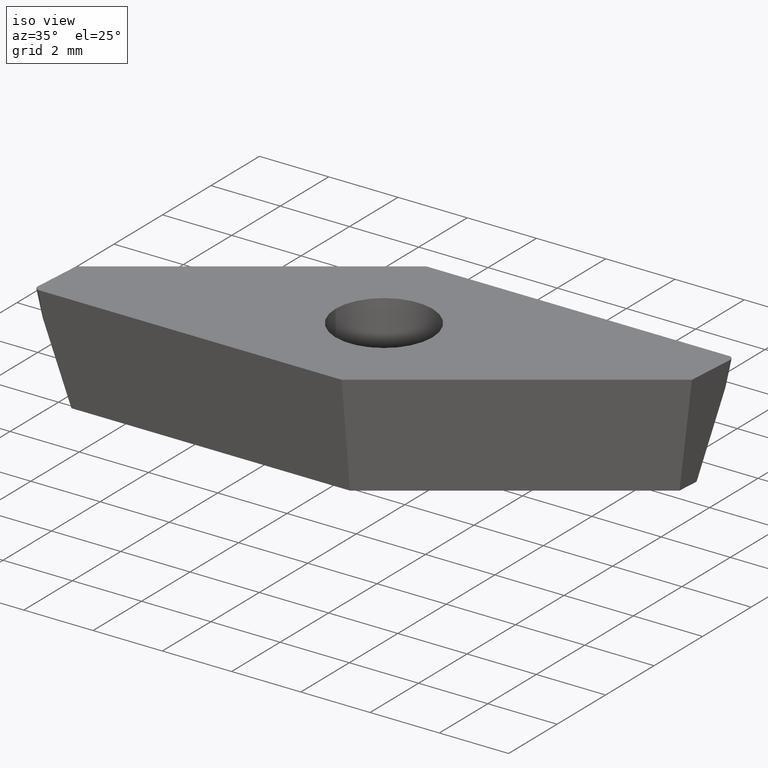
[diagram: clean part render]
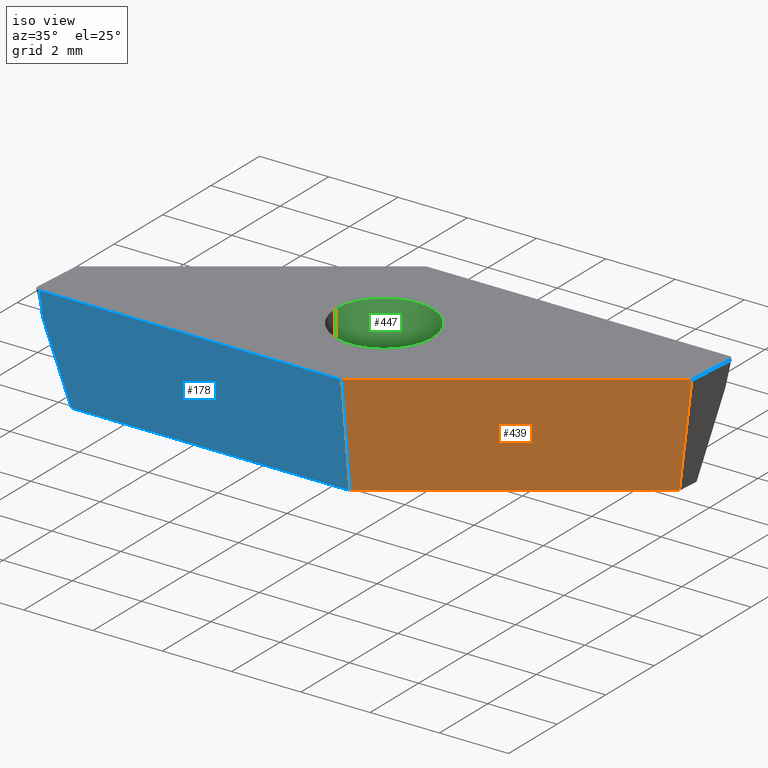
[diagram: same view with three faces highlighted in distinct colors, each labeled with its STEP entity id]
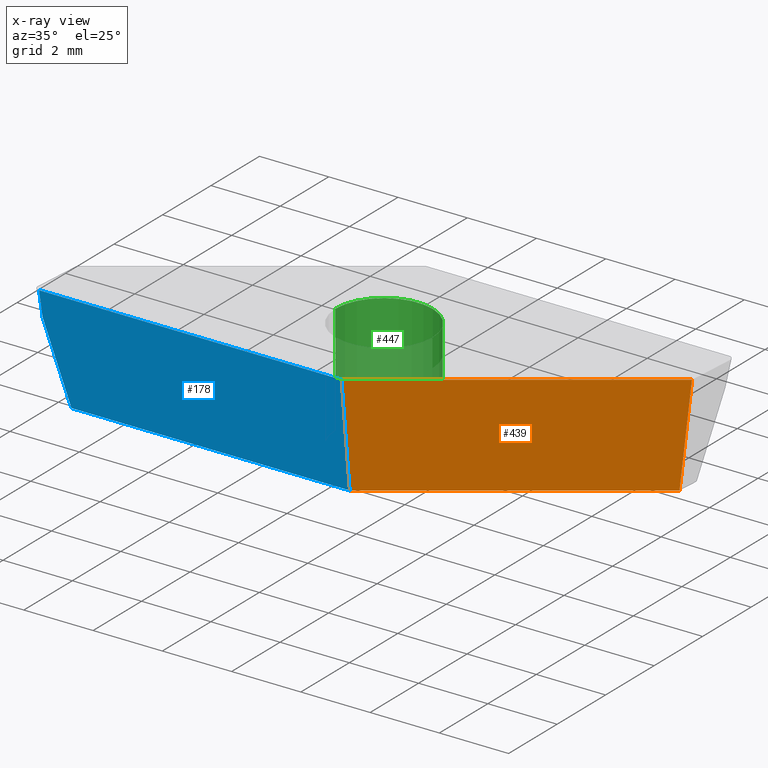
[diagram: x-ray of the same camera — body ghosted, the three highlighted faces saturated]
A machine part, iso view with three faces highlighted in distinct colors.
The next image is the same camera in x-ray (body ghosted, the three faces saturated) — at least one of them is partly hidden behind the body in this view.
Their STEP definitions:

[orange] entity #439 — the highlighted planar face has unit normal (0.563, -0.8041, -0.1908).
#2 = LINE ( 'NONE', #360, #9 ) ;
#9 = VECTOR ( 'NONE', #76, 1000.000000000000100 ) ;
#31 = EDGE_CURVE ( 'NONE', #390, #176, #122, .T. ) ;
#65 = VECTOR ( 'NONE', #74, 1000.000000000000000 ) ;
#74 = DIRECTION ( 'NONE',  ( 0.1832382521941806600, -0.1036712150141735900, 0.9775868360970839700 ) ) ;
#76 = DIRECTION ( 'NONE',  ( 0.06005326349153969300, -0.1904646183547176200, 0.9798555172570124800 ) ) ;
#82 = CARTESIAN_POINT ( 'NONE',  ( 7.788289079147451100, 1.577459403657729400, 3.148184459698170000E-018 ) ) ;
#98 = CARTESIAN_POINT ( 'NONE',  ( 7.433744630409206500, 2.083801351424741500, -3.180000000000000200 ) ) ;
#100 = DIRECTION ( 'NONE',  ( 0.8191520442889952400, 0.5735764363510412700, -0.0000000000000000000 ) ) ;
#115 = CARTESIAN_POINT ( 'NONE',  ( 7.788289079147451100, 1.577459403657729400, 0.0000000000000000000 ) ) ;
#121 = VERTEX_POINT ( 'NONE', #422 ) ;
#122 = LINE ( 'NONE', #98, #128 ) ;
#128 = VECTOR ( 'NONE', #330, 1000.000000000000000 ) ;
#154 = CARTESIAN_POINT ( 'NONE',  ( 7.788289079147451100, 1.577459403657729400, 0.0000000000000000000 ) ) ;
#156 = PLANE ( 'NONE',  #171 ) ;
#166 = CARTESIAN_POINT ( 'NONE',  ( 7.788289079147451100, 1.577459403657729400, 0.0000000000000000000 ) ) ;
#169 = DIRECTION ( 'NONE',  ( 0.8191520442889951300, 0.5735764363510412700, 0.0000000000000000000 ) ) ;
#170 = DIRECTION ( 'NONE',  ( 0.5630382217072209500, -0.8041019140508023400, -0.1908089953765452500 ) ) ;
#171 = AXIS2_PLACEMENT_3D ( 'NONE', #166, #170, #169 ) ;
#176 = VERTEX_POINT ( 'NONE', #192 ) ;
#177 = EDGE_LOOP ( 'NONE', ( #253, #256, #258, #259 ) ) ;
#187 = LINE ( 'NONE', #82, #65 ) ;
#192 = CARTESIAN_POINT ( 'NONE',  ( 7.192231910145610000, 1.914692324122640600, -3.180000000000000200 ) ) ;
#214 = CARTESIAN_POINT ( 'NONE',  ( 0.8061782088420801400, -2.556870616942053400, -3.180000000000000200 ) ) ;
#234 = EDGE_CURVE ( 'NONE', #390, #121, #2, .T. ) ;
#251 = FACE_OUTER_BOUND ( 'NONE', #177, .T. ) ;
#253 = ORIENTED_EDGE ( 'NONE', *, *, #399, .F. ) ;
#256 = ORIENTED_EDGE ( 'NONE', *, *, #234, .F. ) ;
#258 = ORIENTED_EDGE ( 'NONE', *, *, #31, .T. ) ;
#259 = ORIENTED_EDGE ( 'NONE', *, *, #449, .T. ) ;
#330 = DIRECTION ( 'NONE',  ( 0.8191520442889951300, 0.5735764363510412700, 0.0000000000000000000 ) ) ;
#332 = VERTEX_POINT ( 'NONE', #115 ) ;
#360 = CARTESIAN_POINT ( 'NONE',  ( 1.001073654690761700, -3.174999999999999800, 4.532429341667184100E-017 ) ) ;
#375 = VECTOR ( 'NONE', #100, 1000.000000000000100 ) ;
#386 = LINE ( 'NONE', #154, #375 ) ;
#390 = VERTEX_POINT ( 'NONE', #214 ) ;
#399 = EDGE_CURVE ( 'NONE', #121, #332, #386, .T. ) ;
#422 = CARTESIAN_POINT ( 'NONE',  ( 1.001073654690762600, -3.174999999999999800, 0.0000000000000000000 ) ) ;
#439 = ADVANCED_FACE ( 'NONE', ( #251 ), #156, .T. ) ;
#449 = EDGE_CURVE ( 'NONE', #176, #332, #187, .T. ) ;

[blue] entity #178 — the highlighted planar face has unit normal (0, -0.9816, -0.1908).
#2 = LINE ( 'NONE', #360, #9 ) ;
#8 = LINE ( 'NONE', #431, #12 ) ;
#9 = VECTOR ( 'NONE', #76, 1000.000000000000100 ) ;
#12 = VECTOR ( 'NONE', #300, 1000.000000000000000 ) ;
#21 = EDGE_LOOP ( 'NONE', ( #260, #263, #265, #269, #271 ) ) ;
#23 = PLANE ( 'NONE',  #328 ) ;
#71 = EDGE_CURVE ( 'NONE', #286, #121, #8, .T. ) ;
#73 = DIRECTION ( 'NONE',  ( 0.0000000000000000000, 0.1908089953765452800, -0.9816271834476639800 ) ) ;
#76 = DIRECTION ( 'NONE',  ( 0.06005326349153969300, -0.1904646183547176200, 0.9798555172570124800 ) ) ;
#80 = FACE_OUTER_BOUND ( 'NONE', #21, .T. ) ;
#99 = DIRECTION ( 'NONE',  ( 1.000000000000000000, 9.744461978823350000E-017, 0.0000000000000000000 ) ) ;
#121 = VERTEX_POINT ( 'NONE', #422 ) ;
#126 = CARTESIAN_POINT ( 'NONE',  ( 1.001073654690762600, -2.556870616942053400, -3.180000000000000200 ) ) ;
#136 = CARTESIAN_POINT ( 'NONE',  ( -7.739144693496299100, -3.025000000000000800, -0.7716831023955449400 ) ) ;
#178 = ADVANCED_FACE ( 'NONE', ( #80 ), #23, .T. ) ;
#214 = CARTESIAN_POINT ( 'NONE',  ( 0.8061782088420801400, -2.556870616942053400, -3.180000000000000200 ) ) ;
#218 = CARTESIAN_POINT ( 'NONE',  ( -7.739144693496300900, -3.175000000000000700, 5.764875297616103600E-018 ) ) ;
#221 = DIRECTION ( 'NONE',  ( -1.859331000664225100E-017, 0.1908089953765452500, -0.9816271834476638600 ) ) ;
#223 = DIRECTION ( 'NONE',  ( 9.565428766485213700E-017, -0.9816271834476639800, -0.1908089953765452800 ) ) ;
#231 = DIRECTION ( 'NONE',  ( -0.2004640746510998900, -0.1869357738407769500, 0.9617011860410842300 ) ) ;
#234 = EDGE_CURVE ( 'NONE', #390, #121, #2, .T. ) ;
#238 = LINE ( 'NONE', #126, #276 ) ;
#239 = CARTESIAN_POINT ( 'NONE',  ( -7.900000000000002100, -3.175000000000000700, 0.0000000000000000000 ) ) ;
#241 = VERTEX_POINT ( 'NONE', #401 ) ;
#260 = ORIENTED_EDGE ( 'NONE', *, *, #71, .F. ) ;
#263 = ORIENTED_EDGE ( 'NONE', *, *, #389, .T. ) ;
#265 = ORIENTED_EDGE ( 'NONE', *, *, #414, .F. ) ;
#269 = ORIENTED_EDGE ( 'NONE', *, *, #440, .T. ) ;
#271 = ORIENTED_EDGE ( 'NONE', *, *, #234, .T. ) ;
#276 = VECTOR ( 'NONE', #99, 1000.000000000000000 ) ;
#286 = VERTEX_POINT ( 'NONE', #400 ) ;
#300 = DIRECTION ( 'NONE',  ( 1.000000000000000000, 9.744461978823348800E-017, -0.0000000000000000000 ) ) ;
#322 = VERTEX_POINT ( 'NONE', #136 ) ;
#328 = AXIS2_PLACEMENT_3D ( 'NONE', #426, #223, #73 ) ;
#360 = CARTESIAN_POINT ( 'NONE',  ( 1.001073654690761700, -3.174999999999999800, 4.532429341667184100E-017 ) ) ;
#362 = VECTOR ( 'NONE', #231, 1000.000000000000100 ) ;
#368 = LINE ( 'NONE', #239, #362 ) ;
#383 = LINE ( 'NONE', #218, #405 ) ;
#389 = EDGE_CURVE ( 'NONE', #286, #322, #383, .T. ) ;
#390 = VERTEX_POINT ( 'NONE', #214 ) ;
#400 = CARTESIAN_POINT ( 'NONE',  ( -7.739144693496300900, -3.175000000000000700, 0.0000000000000000000 ) ) ;
#401 = CARTESIAN_POINT ( 'NONE',  ( -7.237137390861798600, -2.556870616942054300, -3.180000000000000200 ) ) ;
#405 = VECTOR ( 'NONE', #221, 1000.000000000000100 ) ;
#414 = EDGE_CURVE ( 'NONE', #241, #322, #368, .T. ) ;
#422 = CARTESIAN_POINT ( 'NONE',  ( 1.001073654690762600, -3.174999999999999800, 0.0000000000000000000 ) ) ;
#426 = CARTESIAN_POINT ( 'NONE',  ( 1.001073654690762600, -3.174999999999999800, 0.0000000000000000000 ) ) ;
#431 = CARTESIAN_POINT ( 'NONE',  ( 1.001073654690762600, -3.174999999999999800, 0.0000000000000000000 ) ) ;
#440 = EDGE_CURVE ( 'NONE', #241, #390, #238, .T. ) ;

[green] entity #447 — the highlighted cylindrical surface (partial cylindrical patch) has radius 1.4 mm, axis along (-0, -0, 1).
#36 = CIRCLE ( 'NONE', #429, 1.399999999999999900 ) ;
#38 = CARTESIAN_POINT ( 'NONE',  ( -1.399999999999999900, 1.714505518806294100E-016, -3.180000000000000200 ) ) ;
#66 = DIRECTION ( 'NONE',  ( 1.000000000000000000, 0.0000000000000000000, 0.0000000000000000000 ) ) ;
#75 = CARTESIAN_POINT ( 'NONE',  ( 1.399999999999999900, 0.0000000000000000000, 0.0000000000000000000 ) ) ;
#81 = CARTESIAN_POINT ( 'NONE',  ( 1.399999999999999900, 0.0000000000000000000, -3.180000000000000200 ) ) ;
#83 = DIRECTION ( 'NONE',  ( 0.0000000000000000000, 0.0000000000000000000, 1.000000000000000000 ) ) ;
#85 = CARTESIAN_POINT ( 'NONE',  ( 0.0000000000000000000, 0.0000000000000000000, 0.0000000000000000000 ) ) ;
#92 = CYLINDRICAL_SURFACE ( 'NONE', #402, 1.399999999999999900 ) ;
#102 = DIRECTION ( 'NONE',  ( 1.000000000000000000, 0.0000000000000000000, 0.0000000000000000000 ) ) ;
#105 = DIRECTION ( 'NONE',  ( -0.0000000000000000000, -0.0000000000000000000, 1.000000000000000000 ) ) ;
#107 = CARTESIAN_POINT ( 'NONE',  ( 0.0000000000000000000, 0.0000000000000000000, -3.180000000000000200 ) ) ;
#110 = AXIS2_PLACEMENT_3D ( 'NONE', #85, #83, #66 ) ;
#125 = DIRECTION ( 'NONE',  ( 0.0000000000000000000, 0.0000000000000000000, 1.000000000000000000 ) ) ;
#130 = DIRECTION ( 'NONE',  ( 1.000000000000000000, 0.0000000000000000000, 0.0000000000000000000 ) ) ;
#134 = DIRECTION ( 'NONE',  ( -0.0000000000000000000, -0.0000000000000000000, 1.000000000000000000 ) ) ;
#137 = VERTEX_POINT ( 'NONE', #213 ) ;
#145 = VERTEX_POINT ( 'NONE', #75 ) ;
#160 = CIRCLE ( 'NONE', #110, 1.399999999999999900 ) ;
#161 = VERTEX_POINT ( 'NONE', #38 ) ;
#162 = EDGE_CURVE ( 'NONE', #180, #161, #36, .T. ) ;
#163 = FACE_OUTER_BOUND ( 'NONE', #174, .T. ) ;
#168 = CARTESIAN_POINT ( 'NONE',  ( 0.0000000000000000000, 0.0000000000000000000, -3.180000000000000200 ) ) ;
#173 = CARTESIAN_POINT ( 'NONE',  ( 1.399999999999999900, 0.0000000000000000000, -3.180000000000000200 ) ) ;
#174 = EDGE_LOOP ( 'NONE', ( #336, #358, #366, #378 ) ) ;
#180 = VERTEX_POINT ( 'NONE', #81 ) ;
#213 = CARTESIAN_POINT ( 'NONE',  ( -1.399999999999999900, 1.714505518806294100E-016, 0.0000000000000000000 ) ) ;
#245 = DIRECTION ( 'NONE',  ( -0.0000000000000000000, -0.0000000000000000000, 1.000000000000000000 ) ) ;
#255 = CARTESIAN_POINT ( 'NONE',  ( -1.399999999999999900, 1.714505518806294100E-016, -3.180000000000000200 ) ) ;
#296 = VECTOR ( 'NONE', #134, 1000.000000000000000 ) ;
#329 = LINE ( 'NONE', #173, #296 ) ;
#336 = ORIENTED_EDGE ( 'NONE', *, *, #408, .F. ) ;
#358 = ORIENTED_EDGE ( 'NONE', *, *, #162, .F. ) ;
#366 = ORIENTED_EDGE ( 'NONE', *, *, #428, .T. ) ;
#367 = VECTOR ( 'NONE', #245, 1000.000000000000000 ) ;
#377 = LINE ( 'NONE', #255, #367 ) ;
#378 = ORIENTED_EDGE ( 'NONE', *, *, #448, .T. ) ;
#402 = AXIS2_PLACEMENT_3D ( 'NONE', #168, #105, #102 ) ;
#408 = EDGE_CURVE ( 'NONE', #161, #137, #377, .T. ) ;
#428 = EDGE_CURVE ( 'NONE', #180, #145, #329, .T. ) ;
#429 = AXIS2_PLACEMENT_3D ( 'NONE', #107, #125, #130 ) ;
#447 = ADVANCED_FACE ( 'NONE', ( #163 ), #92, .F. ) ;
#448 = EDGE_CURVE ( 'NONE', #145, #137, #160, .T. ) ;